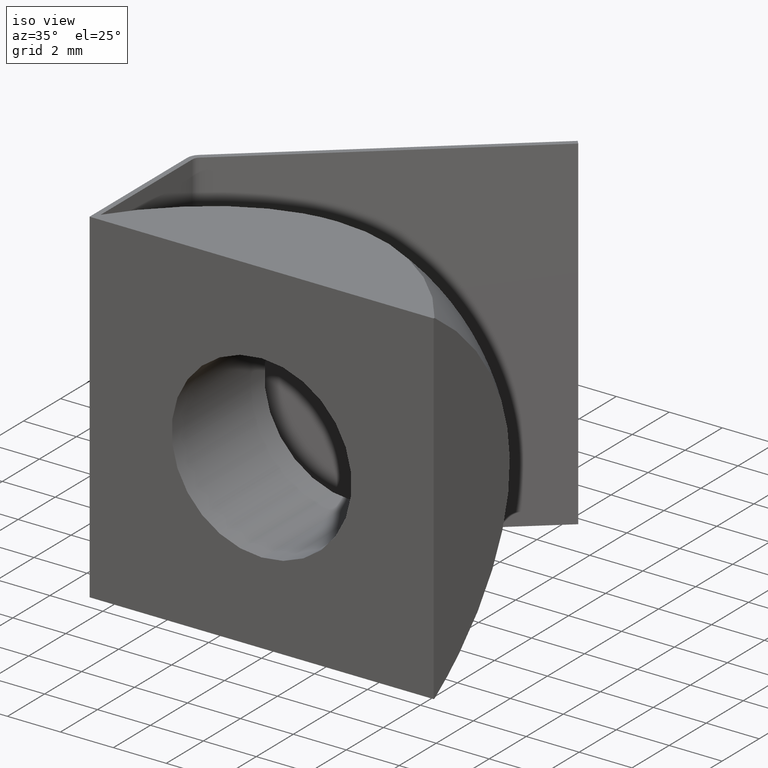
[diagram: clean part render]
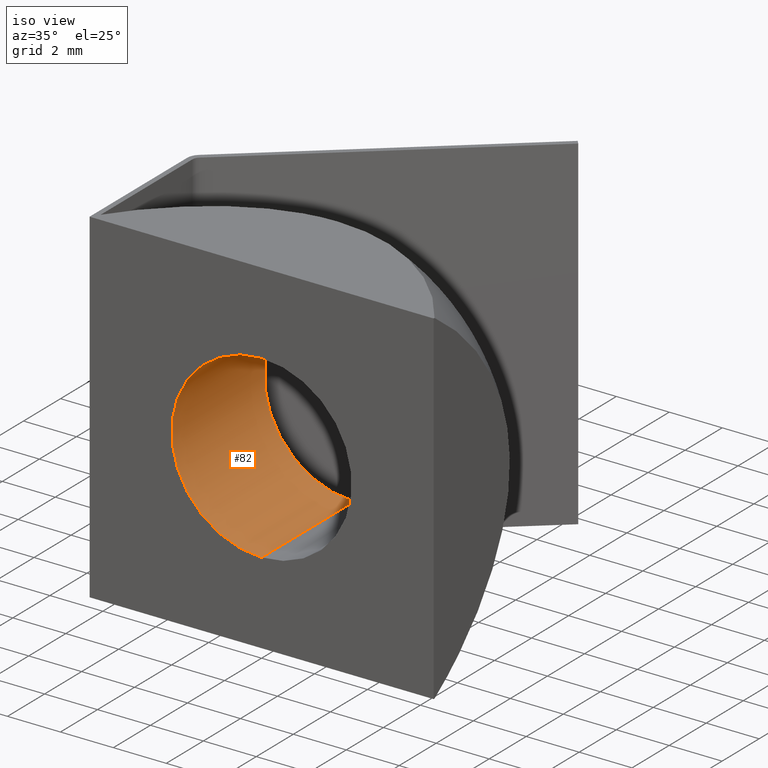
[diagram: same view with one face highlighted and labeled with its STEP entity id]
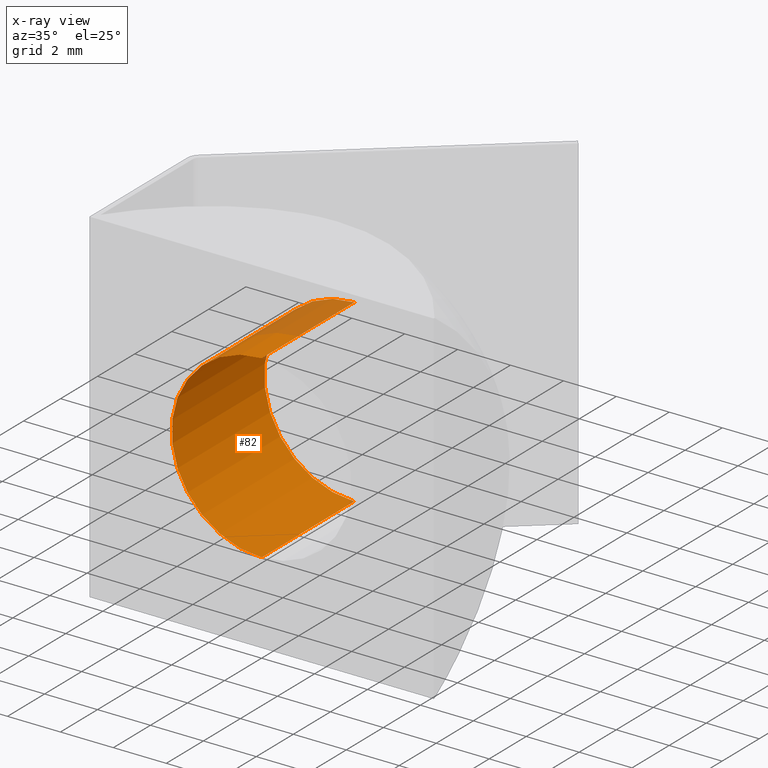
[diagram: x-ray of the same camera — body ghosted, the highlighted face saturated]
A machine part, iso view. The second image highlights one B-rep face of the part: STEP entity #82.
The next image is the same camera in x-ray: the body ghosted, the highlighted face saturated — about 7% of this face is hidden behind the body in this view.
In plain terms, the highlighted cylindrical surface (partial cylindrical patch) has radius 3.4 mm, axis along (-0, 1, -0).
Its self-contained STEP definition (entity closure, byte-faithful):
#5 = EDGE_CURVE ( 'NONE', #312, #768, #111, .T. ) ;
#17 = EDGE_CURVE ( 'NONE', #281, #768, #743, .T. ) ;
#23 = EDGE_CURVE ( 'NONE', #222, #312, #615, .T. ) ;
#47 = EDGE_CURVE ( 'NONE', #281, #222, #155, .T. ) ;
#82 = ADVANCED_FACE ( 'NONE', ( #517 ), #538, .F. ) ;
#111 = CIRCLE ( 'NONE', #172, 3.399999999999999500 ) ;
#120 = VECTOR ( 'NONE', #510, 1000.000000000000000 ) ;
#130 = VECTOR ( 'NONE', #608, 1000.000000000000000 ) ;
#143 = AXIS2_PLACEMENT_3D ( 'NONE', #315, #247, #604 ) ;
#155 = CIRCLE ( 'NONE', #143, 3.399999999999999500 ) ;
#170 = AXIS2_PLACEMENT_3D ( 'NONE', #313, #405, #381 ) ;
#172 = AXIS2_PLACEMENT_3D ( 'NONE', #567, #700, #536 ) ;
#222 = VERTEX_POINT ( 'NONE', #725 ) ;
#247 = DIRECTION ( 'NONE',  ( 0.0000000000000000000, -1.000000000000000000, 0.0000000000000000000 ) ) ;
#281 = VERTEX_POINT ( 'NONE', #693 ) ;
#312 = VERTEX_POINT ( 'NONE', #562 ) ;
#313 = CARTESIAN_POINT ( 'NONE',  ( 0.0000000000000000000, 5.000000000000000000, 0.0000000000000000000 ) ) ;
#315 = CARTESIAN_POINT ( 'NONE',  ( 0.0000000000000000000, 0.0000000000000000000, 0.0000000000000000000 ) ) ;
#341 = ORIENTED_EDGE ( 'NONE', *, *, #17, .F. ) ;
#343 = ORIENTED_EDGE ( 'NONE', *, *, #5, .T. ) ;
#345 = ORIENTED_EDGE ( 'NONE', *, *, #23, .T. ) ;
#347 = ORIENTED_EDGE ( 'NONE', *, *, #47, .T. ) ;
#376 = CARTESIAN_POINT ( 'NONE',  ( 0.0000000000000000000, 5.000000000000000000, 3.399999999999999500 ) ) ;
#381 = DIRECTION ( 'NONE',  ( 0.0000000000000000000, 0.0000000000000000000, 1.000000000000000000 ) ) ;
#405 = DIRECTION ( 'NONE',  ( -0.0000000000000000000, 1.000000000000000000, -0.0000000000000000000 ) ) ;
#510 = DIRECTION ( 'NONE',  ( -0.0000000000000000000, 1.000000000000000000, -0.0000000000000000000 ) ) ;
#512 = CARTESIAN_POINT ( 'NONE',  ( 4.163799117101000100E-016, 5.000000000000000000, -3.399999999999999500 ) ) ;
#517 = FACE_OUTER_BOUND ( 'NONE', #587, .T. ) ;
#536 = DIRECTION ( 'NONE',  ( 0.0000000000000000000, 0.0000000000000000000, 1.000000000000000000 ) ) ;
#538 = CYLINDRICAL_SURFACE ( 'NONE', #170, 3.399999999999999500 ) ;
#562 = CARTESIAN_POINT ( 'NONE',  ( 4.163799117101000100E-016, 5.000000000000000000, -3.399999999999999500 ) ) ;
#567 = CARTESIAN_POINT ( 'NONE',  ( 0.0000000000000000000, 5.000000000000000000, 0.0000000000000000000 ) ) ;
#587 = EDGE_LOOP ( 'NONE', ( #347, #345, #343, #341 ) ) ;
#604 = DIRECTION ( 'NONE',  ( 0.0000000000000000000, 0.0000000000000000000, -1.000000000000000000 ) ) ;
#608 = DIRECTION ( 'NONE',  ( -0.0000000000000000000, 1.000000000000000000, -0.0000000000000000000 ) ) ;
#615 = LINE ( 'NONE', #512, #130 ) ;
#693 = CARTESIAN_POINT ( 'NONE',  ( 0.0000000000000000000, 0.0000000000000000000, 3.399999999999999500 ) ) ;
#700 = DIRECTION ( 'NONE',  ( -0.0000000000000000000, 1.000000000000000000, -0.0000000000000000000 ) ) ;
#725 = CARTESIAN_POINT ( 'NONE',  ( 4.163799117101000100E-016, 0.0000000000000000000, -3.399999999999999500 ) ) ;
#743 = LINE ( 'NONE', #376, #120 ) ;
#768 = VERTEX_POINT ( 'NONE', #772 ) ;
#772 = CARTESIAN_POINT ( 'NONE',  ( 0.0000000000000000000, 5.000000000000000000, 3.399999999999999500 ) ) ;